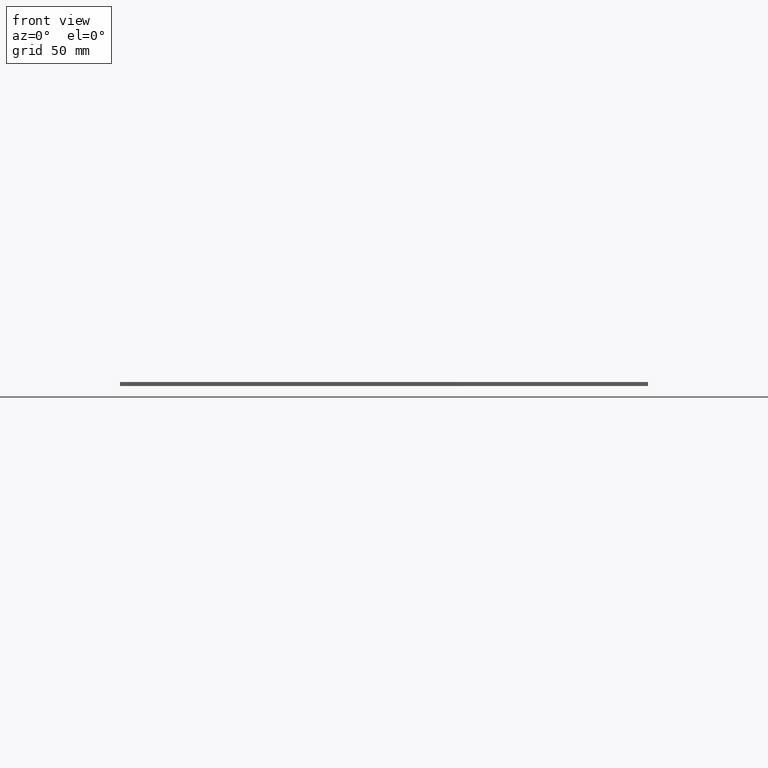
[diagram: clean part render]
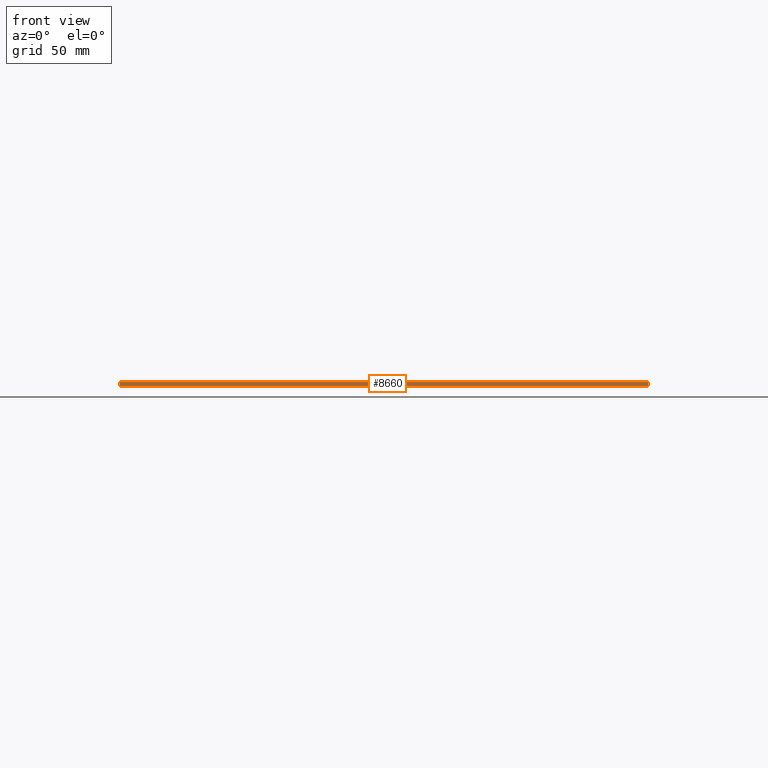
[diagram: same view with one face highlighted and labeled with its STEP entity id]
A machine part, front view. The second image highlights one B-rep face of the part: STEP entity #8660.
In plain terms, the highlighted planar face has unit normal (0, -1, 0).
Its self-contained STEP definition (entity closure, byte-faithful):
#88=FACE_BOUND('',#1317,.T.);
#89=FACE_BOUND('',#1318,.T.);
#492=PLANE('',#9104);
#904=FACE_OUTER_BOUND('',#1316,.T.);
#1316=EDGE_LOOP('',(#8222,#8223,#8224,#8225));
#1317=EDGE_LOOP('',(#8226,#8227,#8228,#8229));
#1318=EDGE_LOOP('',(#8230,#8231,#8232,#8233));
#1325=LINE('',#11184,#2537);
#1331=LINE('',#11197,#2543);
#1506=LINE('',#11558,#2718);
#1744=LINE('',#12043,#2956);
#2517=LINE('',#13589,#3729);
#2519=LINE('',#13592,#3731);
#2520=LINE('',#13594,#3732);
#2521=LINE('',#13596,#3733);
#2528=LINE('',#13611,#3740);
#2529=LINE('',#13614,#3741);
#2530=LINE('',#13616,#3742);
#2531=LINE('',#13617,#3743);
#2537=VECTOR('',#9121,10.);
#2543=VECTOR('',#9131,10.);
#2718=VECTOR('',#9330,10.);
#2956=VECTOR('',#9588,10.);
#3729=VECTOR('',#11135,10.);
#3731=VECTOR('',#11139,10.);
#3732=VECTOR('',#11142,10.);
#3733=VECTOR('',#11145,10.);
#3740=VECTOR('',#11156,10.);
#3741=VECTOR('',#11159,10.);
#3742=VECTOR('',#11160,10.);
#3743=VECTOR('',#11161,10.);
#3762=VERTEX_POINT('',#11181);
#3763=VERTEX_POINT('',#11183);
#3768=VERTEX_POINT('',#11195);
#3942=VERTEX_POINT('',#11557);
#4178=VERTEX_POINT('',#12040);
#4179=VERTEX_POINT('',#12042);
#4564=VERTEX_POINT('',#13586);
#4565=VERTEX_POINT('',#13588);
#4570=VERTEX_POINT('',#13607);
#4571=VERTEX_POINT('',#13609);
#4572=VERTEX_POINT('',#13613);
#4573=VERTEX_POINT('',#13615);
#4579=EDGE_CURVE('',#3763,#3762,#1325,.T.);
#4586=EDGE_CURVE('',#3762,#3768,#1331,.T.);
#4766=EDGE_CURVE('',#3942,#3763,#1506,.T.);
#5008=EDGE_CURVE('',#4179,#4178,#1744,.T.);
#5781=EDGE_CURVE('',#4565,#4564,#2517,.T.);
#5783=EDGE_CURVE('',#4564,#4179,#2519,.T.);
#5784=EDGE_CURVE('',#4178,#4565,#2520,.T.);
#5785=EDGE_CURVE('',#3768,#3942,#2521,.T.);
#5792=EDGE_CURVE('',#4570,#4571,#2528,.T.);
#5793=EDGE_CURVE('',#4570,#4572,#2529,.T.);
#5794=EDGE_CURVE('',#4573,#4571,#2530,.T.);
#5795=EDGE_CURVE('',#4572,#4573,#2531,.T.);
#8222=ORIENTED_EDGE('',*,*,#5793,.F.);
#8223=ORIENTED_EDGE('',*,*,#5792,.T.);
#8224=ORIENTED_EDGE('',*,*,#5794,.F.);
#8225=ORIENTED_EDGE('',*,*,#5795,.F.);
#8226=ORIENTED_EDGE('',*,*,#5008,.T.);
#8227=ORIENTED_EDGE('',*,*,#5784,.T.);
#8228=ORIENTED_EDGE('',*,*,#5781,.T.);
#8229=ORIENTED_EDGE('',*,*,#5783,.T.);
#8230=ORIENTED_EDGE('',*,*,#4766,.T.);
#8231=ORIENTED_EDGE('',*,*,#4579,.T.);
#8232=ORIENTED_EDGE('',*,*,#4586,.T.);
#8233=ORIENTED_EDGE('',*,*,#5785,.T.);
#8660=ADVANCED_FACE('',(#904,#88,#89),#492,.T.);
#9104=AXIS2_PLACEMENT_3D('',#13612,#11157,#11158);
#9121=DIRECTION('',(-1.,-1.11022302462516E-16,0.));
#9131=DIRECTION('',(0.,0.,1.));
#9330=DIRECTION('',(0.,0.,-1.));
#9588=DIRECTION('',(0.,0.,-1.));
#11135=DIRECTION('',(0.,0.,1.));
#11139=DIRECTION('',(1.,1.11022302462516E-16,0.));
#11142=DIRECTION('',(-1.,-1.11022302462516E-16,0.));
#11145=DIRECTION('',(1.,1.11022302462516E-16,0.));
#11156=DIRECTION('',(0.,0.,-1.));
#11157=DIRECTION('center_axis',(1.11022302462516E-16,-1.,0.));
#11158=DIRECTION('ref_axis',(-1.,-1.11022302462516E-16,0.));
#11159=DIRECTION('',(1.,1.11022302462516E-16,0.));
#11160=DIRECTION('',(-1.,-1.11022302462516E-16,0.));
#11161=DIRECTION('',(0.,0.,-1.));
#11181=CARTESIAN_POINT('',(-92.18,-125.31,-1.2));
#11183=CARTESIAN_POINT('',(-70.68,-125.31,-1.2));
#11184=CARTESIAN_POINT('',(39.125,-125.31,-1.2));
#11195=CARTESIAN_POINT('',(-92.18,-125.31,-1.1));
#11197=CARTESIAN_POINT('',(-92.18,-125.31,-0.55));
#11557=CARTESIAN_POINT('',(-70.68,-125.31,-1.1));
#11558=CARTESIAN_POINT('',(-70.68,-125.31,-0.55));
#12040=CARTESIAN_POINT('',(-33.18,-125.31,-1.2));
#12042=CARTESIAN_POINT('',(-33.18,-125.31,-1.1));
#12043=CARTESIAN_POINT('',(-33.18,-125.31,-0.55));
#13586=CARTESIAN_POINT('',(-61.18,-125.31,-1.1));
#13588=CARTESIAN_POINT('',(-61.18,-125.31,-1.2));
#13589=CARTESIAN_POINT('',(-61.18,-125.31,-0.55));
#13592=CARTESIAN_POINT('',(56.25,-125.31,-1.1));
#13594=CARTESIAN_POINT('',(56.25,-125.31,-1.2));
#13596=CARTESIAN_POINT('',(39.125,-125.31,-1.1));
#13607=CARTESIAN_POINT('',(-160.32,-125.31,0.));
#13609=CARTESIAN_POINT('',(-160.32,-125.31,-2.35));
#13611=CARTESIAN_POINT('',(-160.32,-125.31,0.));
#13612=CARTESIAN_POINT('Origin',(159.68,-125.31,0.));
#13613=CARTESIAN_POINT('',(159.68,-125.31,0.));
#13614=CARTESIAN_POINT('',(-160.32,-125.31,0.));
#13615=CARTESIAN_POINT('',(159.68,-125.31,-2.35));
#13616=CARTESIAN_POINT('',(-160.32,-125.31,-2.35));
#13617=CARTESIAN_POINT('',(159.68,-125.31,0.));